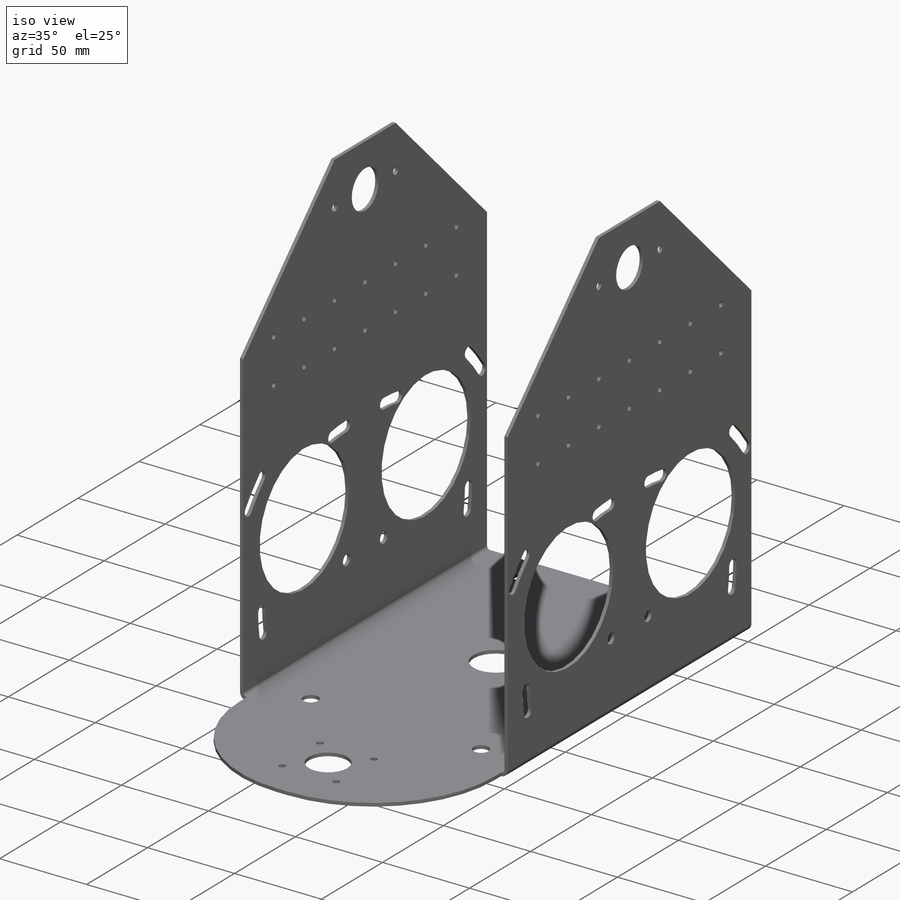
[diagram: iso view]
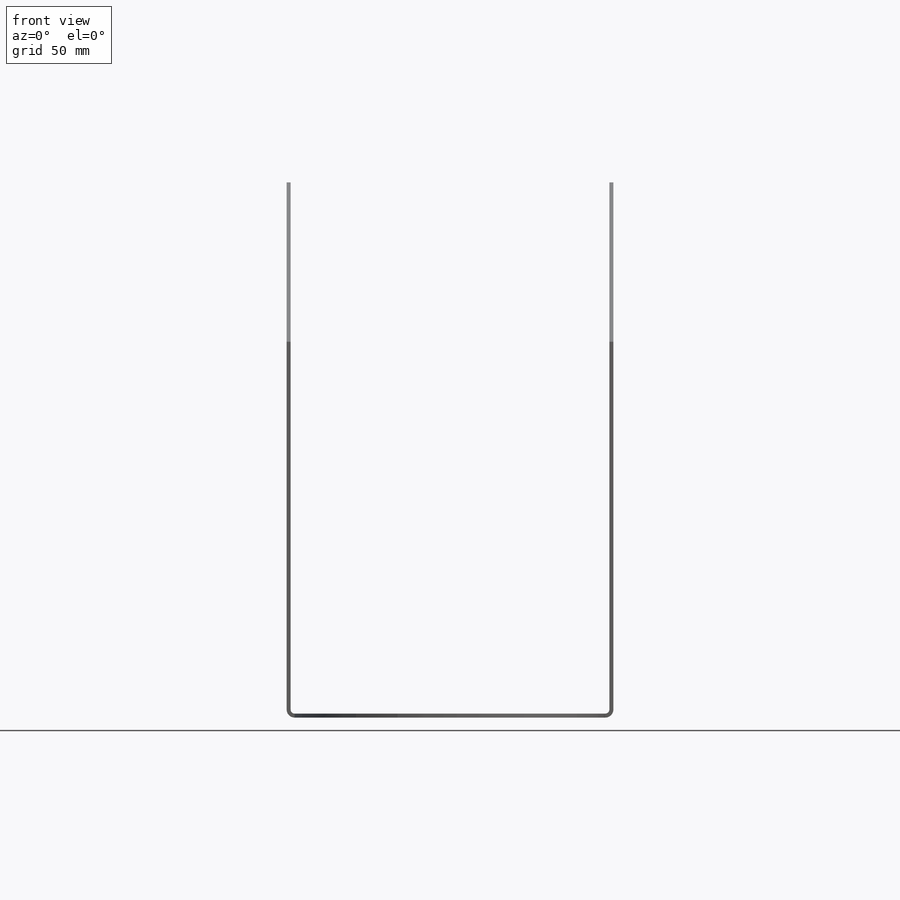
[diagram: front view]
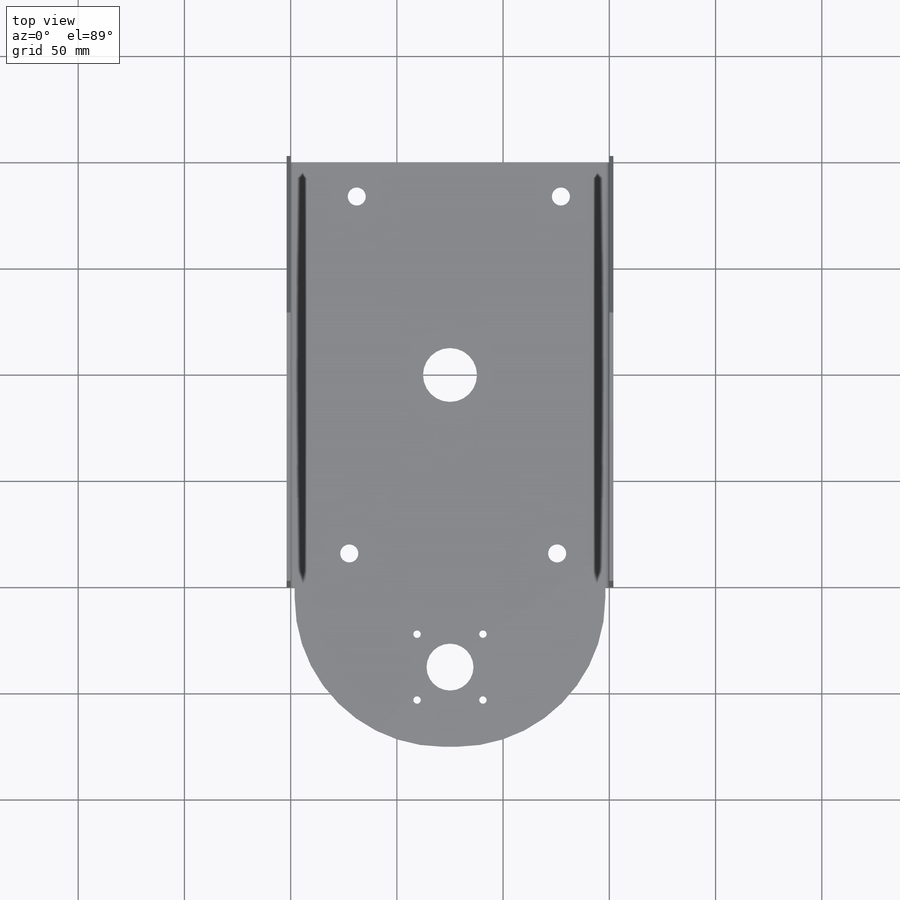
[diagram: top view]
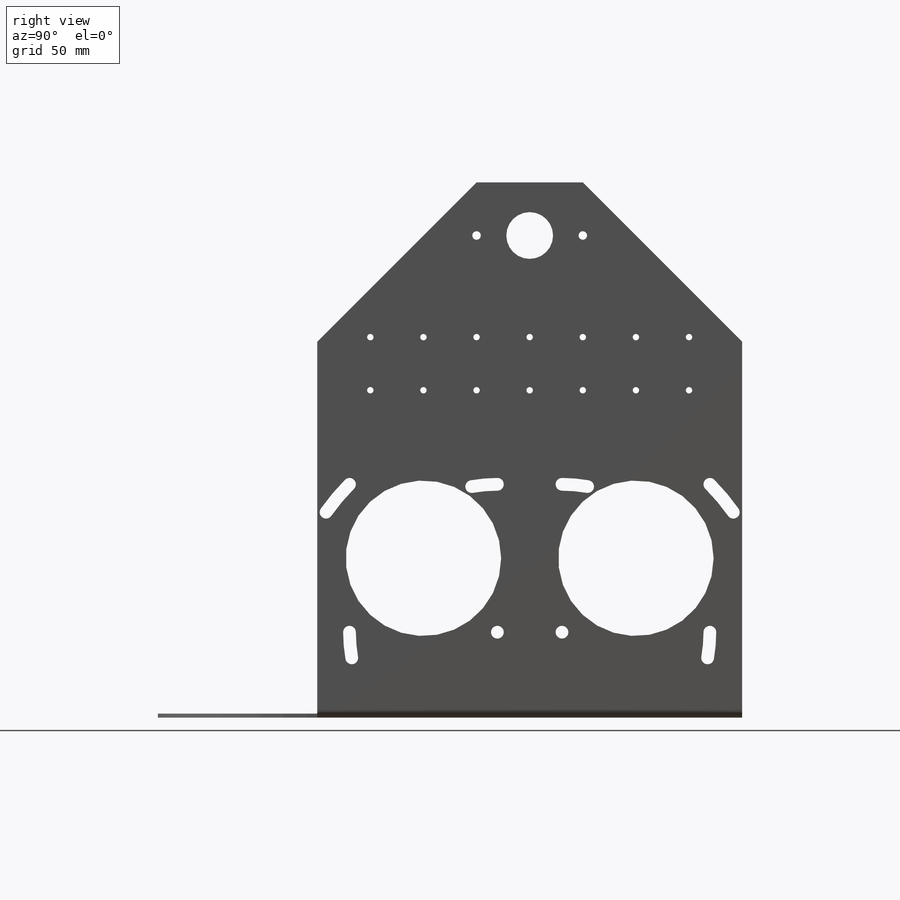
[diagram: right view]
SOLIDWORKS PART (.sldprt)
format: sldprt  version: not decoded by parser v0  size: 745,472 bytes
history: native  units: mm
features: sketch x23, sheet_metal_op x9, cut_extrude x5, material x1 + 7 further entries (+12 scaffold rows collapsed; 7 parser-record rows omitted)
feature tree (64):
  scaffold x12  (default folders/planes/origin — collapsed)
  material  "1023 Carbon Steel Sheet (SS)"
  sketch  "Sketch1"  dims[c1.D1=150.0mm c1.D2=250.0mm c1.D3=250.0mm c2.D1=1.6mm c2.D2=0.5 c2.D3=0.0mm c2.D6=500.0mm]
  sheet_metal_op  "Base-Flange1"
  sheet_metal_op  "BaseBend2"
  sketch  "Sketch6"  dims[c1.D1=6.0mm c1.D4=73.152mm c1.D18=69.6mm c1.D21=~98.429264mm c1.D24=69.6mm c2.D1=34.8mm c2.D2=34.8mm c2.D3=34.8mm c2.D6=50.0mm c2.D7=0.0mm c2.D8=75.0mm c2.D9=69.6mm c2.D5=69.6mm c2.D10=10.0deg c2.D13=10.0deg c2.D15=10.0deg c2.D16=6.0mm c2.D19=6.0mm c2.D22=6.0mm c2.D17=10.0deg c2.D20=10.0deg c2.D23=10.0deg c3.D9=2.0 c3.D11=4.0 c3.D12=2.0 c3.D14=2.0]
  cut_extrude  "Cut-Extrude1"  [1 undecoded]
  sketch  "Sketch9"  dims[D1=8.5mm D2=8.5mm D3=8.5mm D4=8.5mm D11=25.4mm D5=16.0mm D6=16.0mm D7=16.0mm D8=16.0mm D9=0.0mm D10=0.0mm]
  cut_extrude  "Cut-Extrude2"  Depth=75mm
  sketch  "Sketch11"  dims[c1.D1=~3.689915mm c1.D3=22.0mm c1.D4=4.0mm c1.D5=4.0mm c2.D1=25.0mm c2.D2=0.0mm c2.D6=25.0mm c2.D7=25.0mm]
  cut_extrude  "Cut-Extrude3"  [1 undecoded]
  sketch  "Sketch12"  dims[D1=3.0mm D2=25.0mm D3=7.0 D4=2.0]
  cut_extrude  "Cut-Extrude4"  [1 undecoded]
  sketch  "Sketch19"  dims[c1.D2=70.0mm c1.D1=75.0mm c1.Tab1=0.0 c2.D1=~1.89738mm]
  sketch  "Sketch22"  dims[D1=22.1mm D2=3.5mm D3=15.5mm D4=15.5mm D5=2.0 D6=2.0]
  cut_extrude  "Cut-Extrude5"  [1 undecoded]
  sketch  "Bend-Lines1"
  sketch  "Bounding-Box1"
  sheet_metal_op  "Sheet-Metal(1)"
  "Flat-Pattern(1)"
  sketch  "Bend-Lines2"
  sketch  "Bounding-Box2"
  parser-record x7  (decoder bookkeeping rows leaked as tree rows — omitted from the tree; the rows remain in map.json)
  sheet_metal_op  "Sheet-Metal(2)"
  "Flat-Pattern(1)"
  sketch  "Bend-Lines2"
  sketch  "Bounding-Box2"
  sheet_metal_op  "Sheet-Metal(3)"
  "Flat-Pattern(1)"
  sketch  "Bend-Lines2"
  sketch  "Bounding-Box2"
  sheet_metal_op  "Sheet-Metal(4)"
  "Flat-Pattern(1)"
  sketch  "Bend-Lines2"
  sketch  "Bounding-Box2"
  sheet_metal_op  "Sheet-Metal(5)"
  "Flat-Pattern(1)"
  sketch  "Bend-Lines2"
  sketch  "Bounding-Box2"
  sheet_metal_op  "Sheet-Metal(10)"
  "Flat-Pattern(10)"
  sketch  "Bend-Lines4"
  sketch  "Bounding-Box4"
  sheet_metal_op  "Sheet-Metal(11)"
  "Flat-Pattern(10)"
  sketch  "Bend-Lines4"
  sketch  "Bounding-Box4"
decode coverage: 8 of 37 modeling features carry decoded parameters; 7 rows unclassified (native names shown)
note: ~ marks probable driven/reference dimensions
note: 4 parameter values undecoded
summary: no parameter record found for 4 features
note: suppression state not decoded; provenance and decode notes live in map.json
